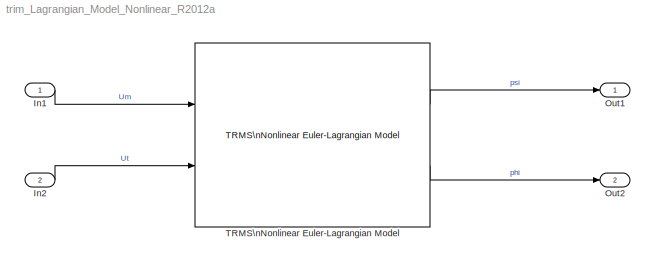
MODEL trim_Lagrangian_Model_Nonlinear_R2012a
KIND model
BLOCK [Inport] In1
  IconDisplay = Port number
  SID = 2
BLOCK [Inport] In2
  IconDisplay = Port number
  Port = 2
  SID = 3
BLOCK [Outport] Out1
  IconDisplay = Port number
  SID = 4
BLOCK [Outport] Out2
  IconDisplay = Port number
  Port = 2
  SID = 5
BLOCK [Reference] TRMS\nNonlinear Euler-Lagrangian Model  REF=lib_Lagrangian_Model_Nonlinear/TRMS\nNonlinear Euler-Lagrangian Model
  Phi_dot_zero = 0
  Phi_zero = 0
  Ports = [2, 2]
  Psi_dot_zero = 0
  Psi_zero = 0
  SID = 1
  SourceBlock = lib_Lagrangian_Model_Nonlinear/TRMS\nNonlinear Euler-Lagrangian Model
  SourceType = Physical model
  Wm_zero = 0
  Wt_zero = 0
LINE In1:1 -> TRMS\nNonlinear Euler-Lagrangian Model:1
LINE In2:1 -> TRMS\nNonlinear Euler-Lagrangian Model:2
LINE TRMS\nNonlinear Euler-Lagrangian Model:1 -> Out1:1
LINE TRMS\nNonlinear Euler-Lagrangian Model:2 -> Out2:1
